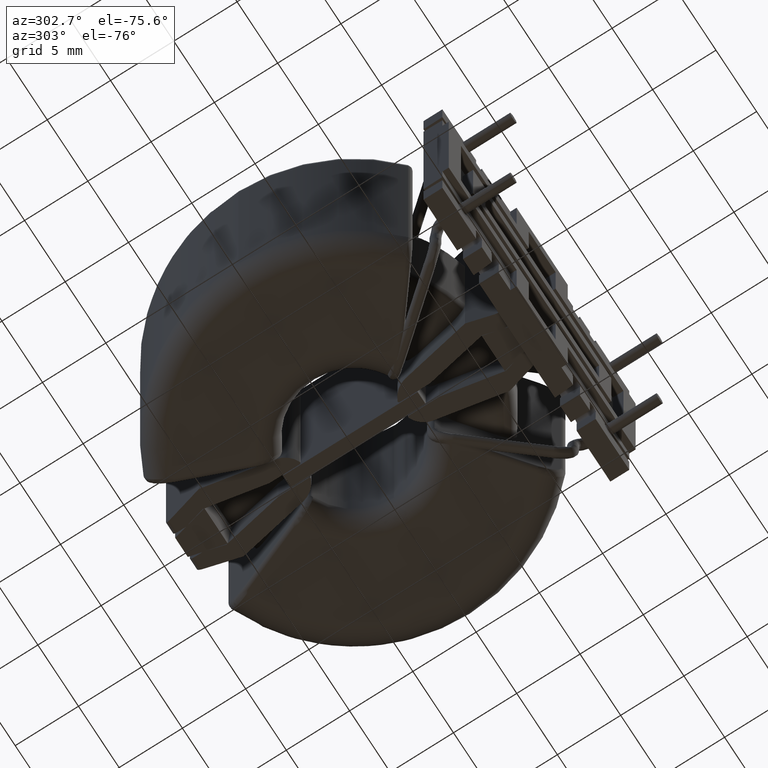
[diagram: clean part render]
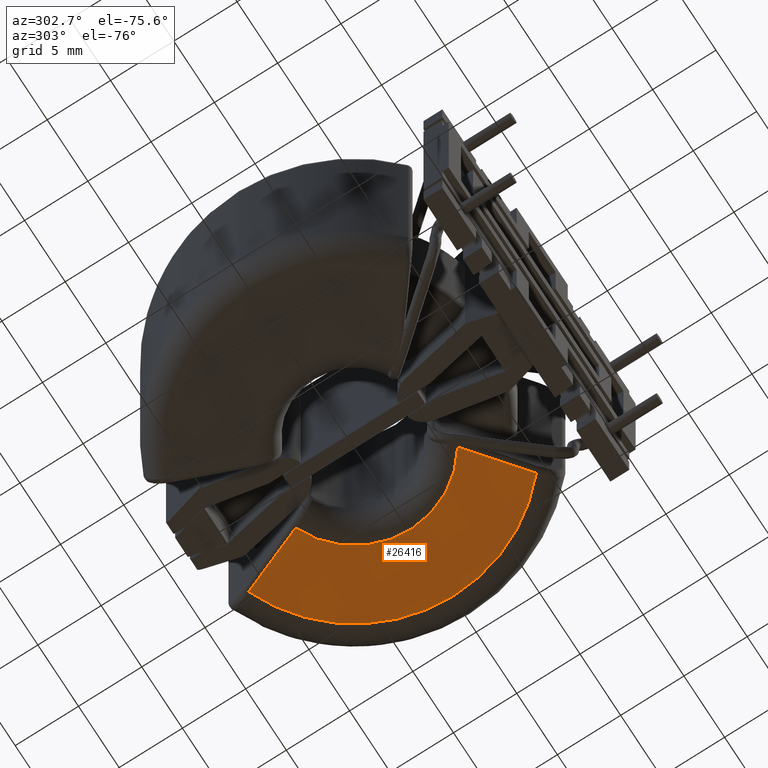
[diagram: same view with one face highlighted and labeled with its STEP entity id]
A machine part, auxiliary view. The second image highlights one B-rep face of the part: STEP entity #26416.
In plain terms, the highlighted planar face has unit normal (0, 0, 1).
Its self-contained STEP definition (entity closure, byte-faithful):
#260 = CARTESIAN_POINT ( 'NONE',  ( -1.328133336132055531, -1.677419595162974897, -11.50000000000000000 ) ) ;
#1260 = EDGE_CURVE ( 'NONE', #25440, #12170, #2216, .T. ) ;
#1802 = DIRECTION ( 'NONE',  ( -1.000000000000000000, 0.0000000000000000000, 0.0000000000000000000 ) ) ;
#2216 = CIRCLE ( 'NONE', #5835, 6.875000000000000000 ) ;
#2240 = CARTESIAN_POINT ( 'NONE',  ( 0.1161349735413052947, -0.04623492100739465260, -11.50000000000000000 ) ) ;
#2420 = EDGE_LOOP ( 'NONE', ( #11242, #24364, #24447, #17440 ) ) ;
#2571 = AXIS2_PLACEMENT_3D ( 'NONE', #22943, #10442, #25067 ) ;
#4792 = VERTEX_POINT ( 'NONE', #10647 ) ;
#4881 = VECTOR ( 'NONE', #23104, 1000.000000000000114 ) ;
#5594 = VERTEX_POINT ( 'NONE', #20112 ) ;
#5696 = PLANE ( 'NONE',  #13600 ) ;
#5835 = AXIS2_PLACEMENT_3D ( 'NONE', #20274, #24519, #24260 ) ;
#6208 = FACE_OUTER_BOUND ( 'NONE', #2420, .T. ) ;
#6416 = EDGE_CURVE ( 'NONE', #4792, #5594, #8824, .T. ) ;
#7910 = CARTESIAN_POINT ( 'NONE',  ( 0.0000000000000000000, 0.0000000000000000000, -11.50000000000000000 ) ) ;
#8212 = EDGE_CURVE ( 'NONE', #5594, #25440, #20367, .T. ) ;
#8824 = CIRCLE ( 'NONE', #2571, 12.25000000000000000 ) ;
#10442 = DIRECTION ( 'NONE',  ( 0.0000000000000000000, 0.0000000000000000000, 1.000000000000000000 ) ) ;
#10647 = CARTESIAN_POINT ( 'NONE',  ( 8.128315971985090371, -9.164768380028602834, -11.50000000000000000 ) ) ;
#11242 = ORIENTED_EDGE ( 'NONE', *, *, #1260, .F. ) ;
#12170 = VERTEX_POINT ( 'NONE', #13439 ) ;
#13439 = CARTESIAN_POINT ( 'NONE',  ( 3.794247944083571689, -5.733176042894339020, -11.50000000000000000 ) ) ;
#13600 = AXIS2_PLACEMENT_3D ( 'NONE', #7910, #14045, #1802 ) ;
#14045 = DIRECTION ( 'NONE',  ( 0.0000000000000000000, 0.0000000000000000000, 1.000000000000000000 ) ) ;
#15988 = CARTESIAN_POINT ( 'NONE',  ( 2.658635276741608600, 6.340132764009368316, -11.50000000000000000 ) ) ;
#17440 = ORIENTED_EDGE ( 'NONE', *, *, #19626, .F. ) ;
#19626 = EDGE_CURVE ( 'NONE', #12170, #4792, #23292, .T. ) ;
#20112 = CARTESIAN_POINT ( 'NONE',  ( 4.646921333671111931, 11.33439994524069583, -11.50000000000000000 ) ) ;
#20274 = CARTESIAN_POINT ( 'NONE',  ( 0.0000000000000000000, 0.0000000000000000000, -11.50000000000000000 ) ) ;
#20367 = LINE ( 'NONE', #2240, #23316 ) ;
#21049 = DIRECTION ( 'NONE',  ( -0.3698793680591607180, -0.9290797883304511284, 0.0000000000000000000 ) ) ;
#22943 = CARTESIAN_POINT ( 'NONE',  ( 0.0000000000000000000, 0.0000000000000000000, -11.50000000000000000 ) ) ;
#23104 = DIRECTION ( 'NONE',  ( 0.7840057544486430663, -0.6207535557621993716, 0.0000000000000000000 ) ) ;
#23292 = LINE ( 'NONE', #260, #4881 ) ;
#23316 = VECTOR ( 'NONE', #21049, 1000.000000000000000 ) ;
#24260 = DIRECTION ( 'NONE',  ( -1.000000000000000000, 0.0000000000000000000, 0.0000000000000000000 ) ) ;
#24364 = ORIENTED_EDGE ( 'NONE', *, *, #8212, .F. ) ;
#24447 = ORIENTED_EDGE ( 'NONE', *, *, #6416, .F. ) ;
#24519 = DIRECTION ( 'NONE',  ( -0.0000000000000000000, -0.0000000000000000000, -1.000000000000000000 ) ) ;
#25067 = DIRECTION ( 'NONE',  ( -1.000000000000000000, 0.0000000000000000000, 0.0000000000000000000 ) ) ;
#25440 = VERTEX_POINT ( 'NONE', #15988 ) ;
#26416 = ADVANCED_FACE ( 'NONE', ( #6208 ), #5696, .F. ) ;